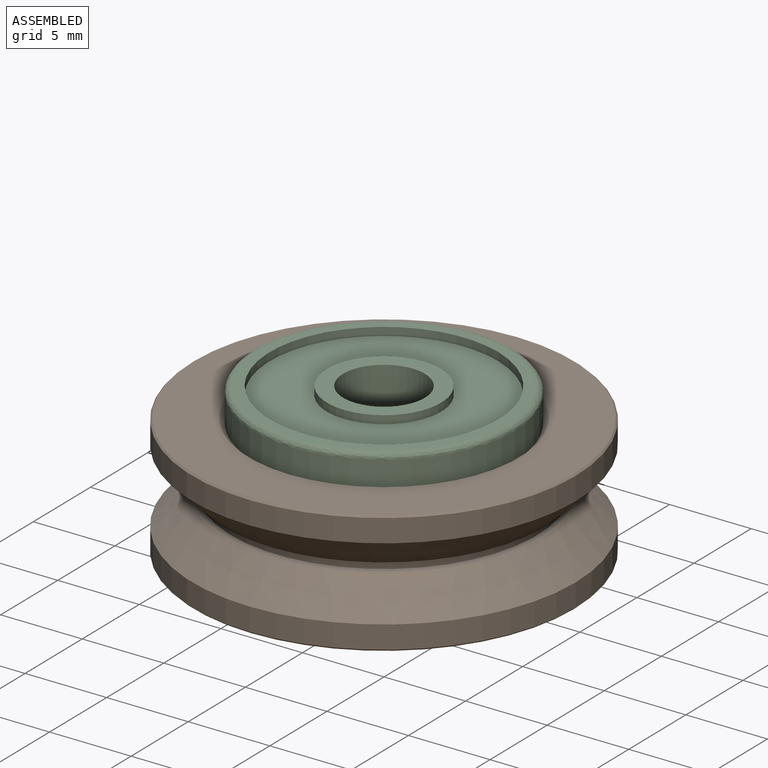
[diagram: assembled view]
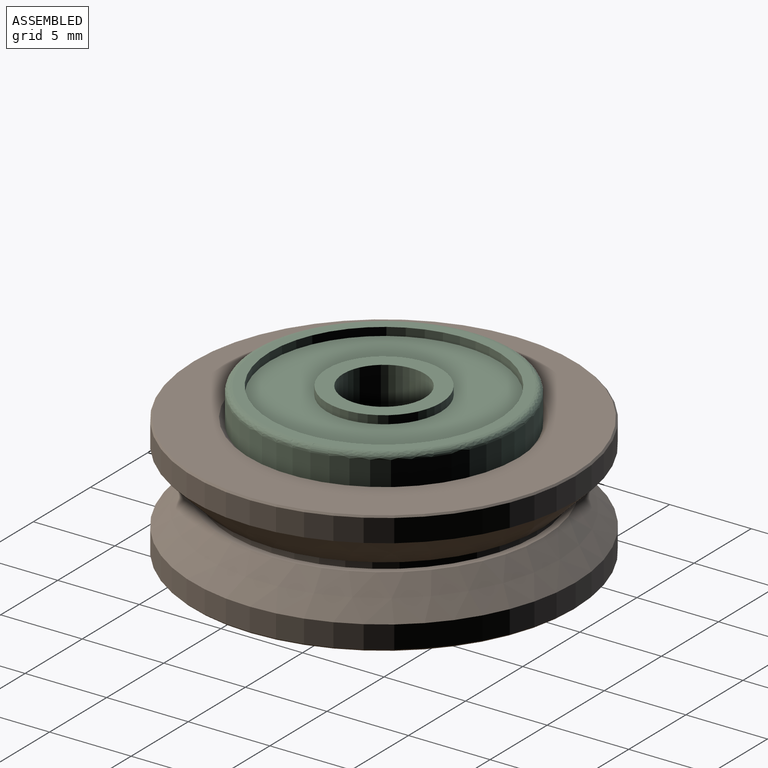
[diagram: assembled view, second angle]
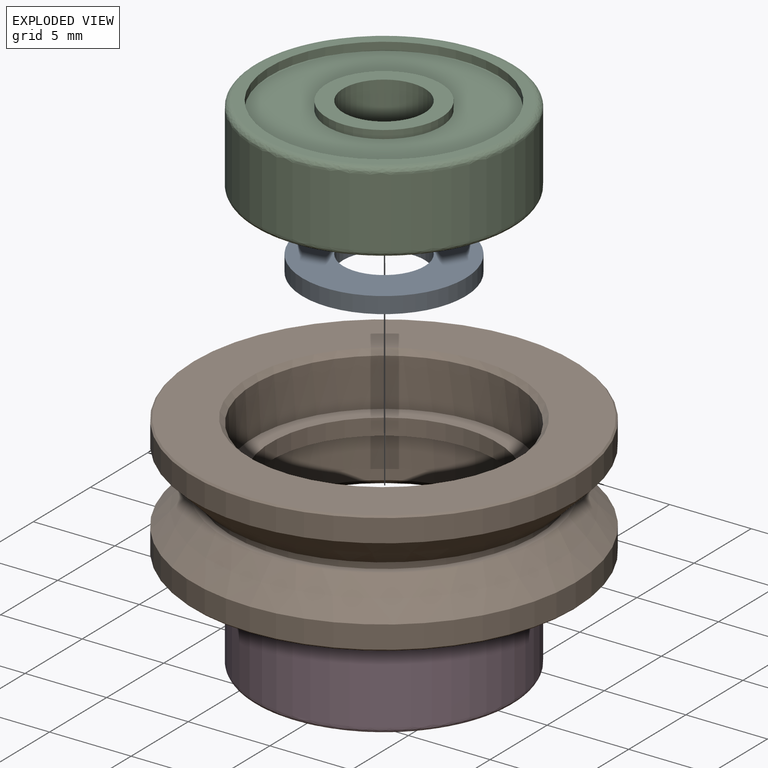
[diagram: exploded view]
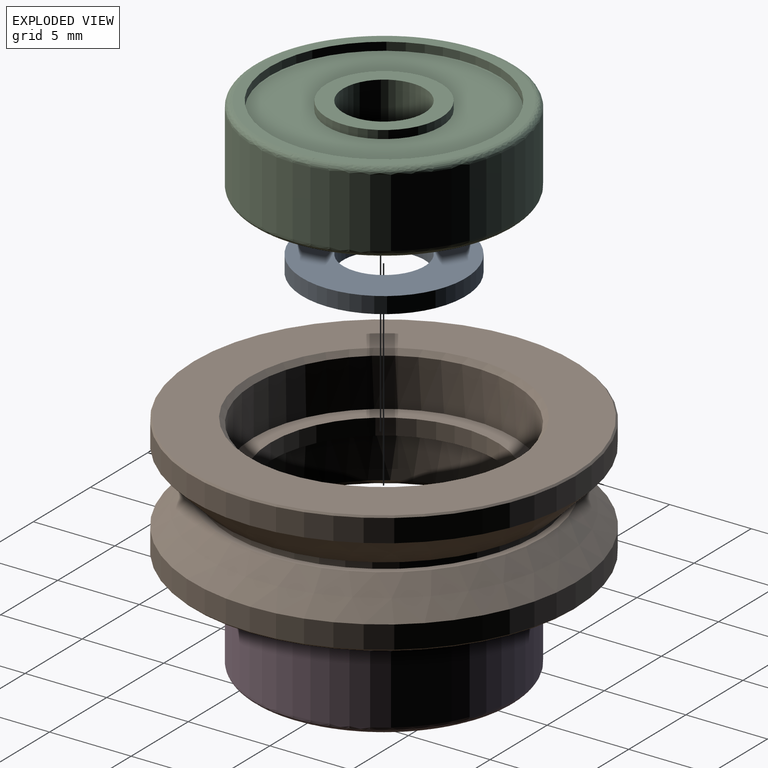
[diagram: exploded view, second angle]
ASSEMBLY  parts=4 mates=3
PART A: 4 faces, bbox 10x10x1 mm
  f0: plane 10x10mm, normal (0,0,-1), area 58.9mm2, adj f1,f2
  f1: cylinder r=5mm len=10mm, axis (0,0,-1), area 31.4mm2, adj f0,f3
  f2: cylinder r=2.5mm len=5mm, axis (0,0,-1), area 15.7mm2, adj f0,f3
  f3: plane 10x10mm, normal (0,0,1), area 58.9mm2, adj f1,f2
PART B: 18 faces, bbox 23.5x23.5x7.5 mm
  f0: cone r=11.75mm half-angle=45deg, axis (0,0,1), area 10.4mm2, adj f1,f2
  f1: cylinder r=11.75mm len=23.5mm, axis (0,0,-1), area 103.4mm2, adj f0,f3
  f2: plane 23.3x23.3mm, normal (0,0,-1), area 210.6mm2, adj f0,f4
  f3: cone r=11.75mm half-angle=45deg, axis (0,0,-1), area 188.9mm2, adj f1,f5
  f4: cone r=8.29mm half-angle=45deg, axis (0,0,-1), area 21.7mm2, adj f2,f6
  f5: plane 19.55x19.55mm, normal (0,0,1), area 24.1mm2, adj f3,f7
  f6: cylinder r=7.99mm len=15.97mm, axis (0,0,1), area 148mm2, adj f4,f8
  f7: cylinder r=9.38mm len=18.75mm, axis (0,0,-1), area 32.4mm2, adj f5,f9
  f8: plane 15.97x15.97mm, normal (0,0,-1), area 48.8mm2, adj f6,f10
  f9: plane 19.55x19.55mm, normal (0,0,-1), area 24.1mm2, adj f7,f11
  f10: cylinder r=6.95mm len=13.89mm, axis (0,0,1), area 43.7mm2, adj f8,f12
  f11: cone r=11.75mm half-angle=45deg, axis (0,0,1), area 188.9mm2, adj f9,f13
  f12: plane 15.97x15.97mm, normal (0,0,1), area 48.8mm2, adj f10,f14
  f13: cylinder r=11.75mm len=23.5mm, axis (0,0,-1), area 103.4mm2, adj f11,f15
  f14: cylinder r=7.99mm len=15.97mm, axis (0,0,1), area 148mm2, adj f12,f16
  f15: cone r=11.75mm half-angle=45deg, axis (0,0,-1), area 10.4mm2, adj f13,f17
  f16: cone r=8.29mm half-angle=45deg, axis (0,0,1), area 21.7mm2, adj f14,f17
  f17: plane 23.3x23.3mm, normal (0,0,1), area 210.6mm2, adj f15,f16
PART C: 15 faces, bbox 16x16x5 mm
  f0: cylinder r=2.5mm len=5mm, axis (0,0,-1), area 78.5mm2, adj f1,f2
  f1: plane 7x7mm, normal (0,0,1), area 18.8mm2, adj f0,f3
  f2: plane 7x7mm, normal (0,0,-1), area 18.8mm2, adj f0,f4
  f3: cylinder r=3.5mm len=7mm, axis (0,0,-1), area 11mm2, adj f1,f5
  f4: cylinder r=3.5mm len=7mm, axis (0,0,-1), area 11mm2, adj f2,f6
  f5: plane 14x14mm, normal (0,0,1), area 115.5mm2, adj f3,f7
  f6: plane 14x14mm, normal (0,0,-1), area 115.5mm2, adj f4,f8
  f7: cylinder r=7mm len=14mm, axis (0,0,-1), area 22mm2, adj f5,f9
  f8: cylinder r=7mm len=14mm, axis (0,0,-1), area 22mm2, adj f6,f10
  f9: plane 15.23x15.23mm, normal (0,0,1), area 28mm2, adj f7,f11
  f10: plane 15.23x15.23mm, normal (0,0,-1), area 28mm2, adj f8,f12
  f11: revolved ~16x16mm, area 29.9mm2, adj f9,f13
  f12: revolved ~16x16mm, area 29.9mm2, adj f10,f13
  f13: cylinder r=8mm len=16mm, axis (0,0,-1), area 212.6mm2, adj f11,f12
  f14: revolved ~13.9x13.9mm, area 359.3mm2
PART D: same geometry as C
PLACE A t=(0,0,6)mm
PLACE B t=(0,0,5.5)mm
PLACE C rot(axis=(1,0,0),180deg) t=(0,0,8.5)mm
PLACE D rot(axis=(1,0,0),180deg) t=(0,0,2.5)mm
MATE fastened D.f0 <-> B.f0  axis (0,0,1) through (0,0,5)mm
MATE fastened A.f1 <-> C.f0  axis (0,0,-1) through (0,0,6)mm
MATE fastened C.f0 <-> B.f0  axis (0,0,1) through (0,0,6)mm
